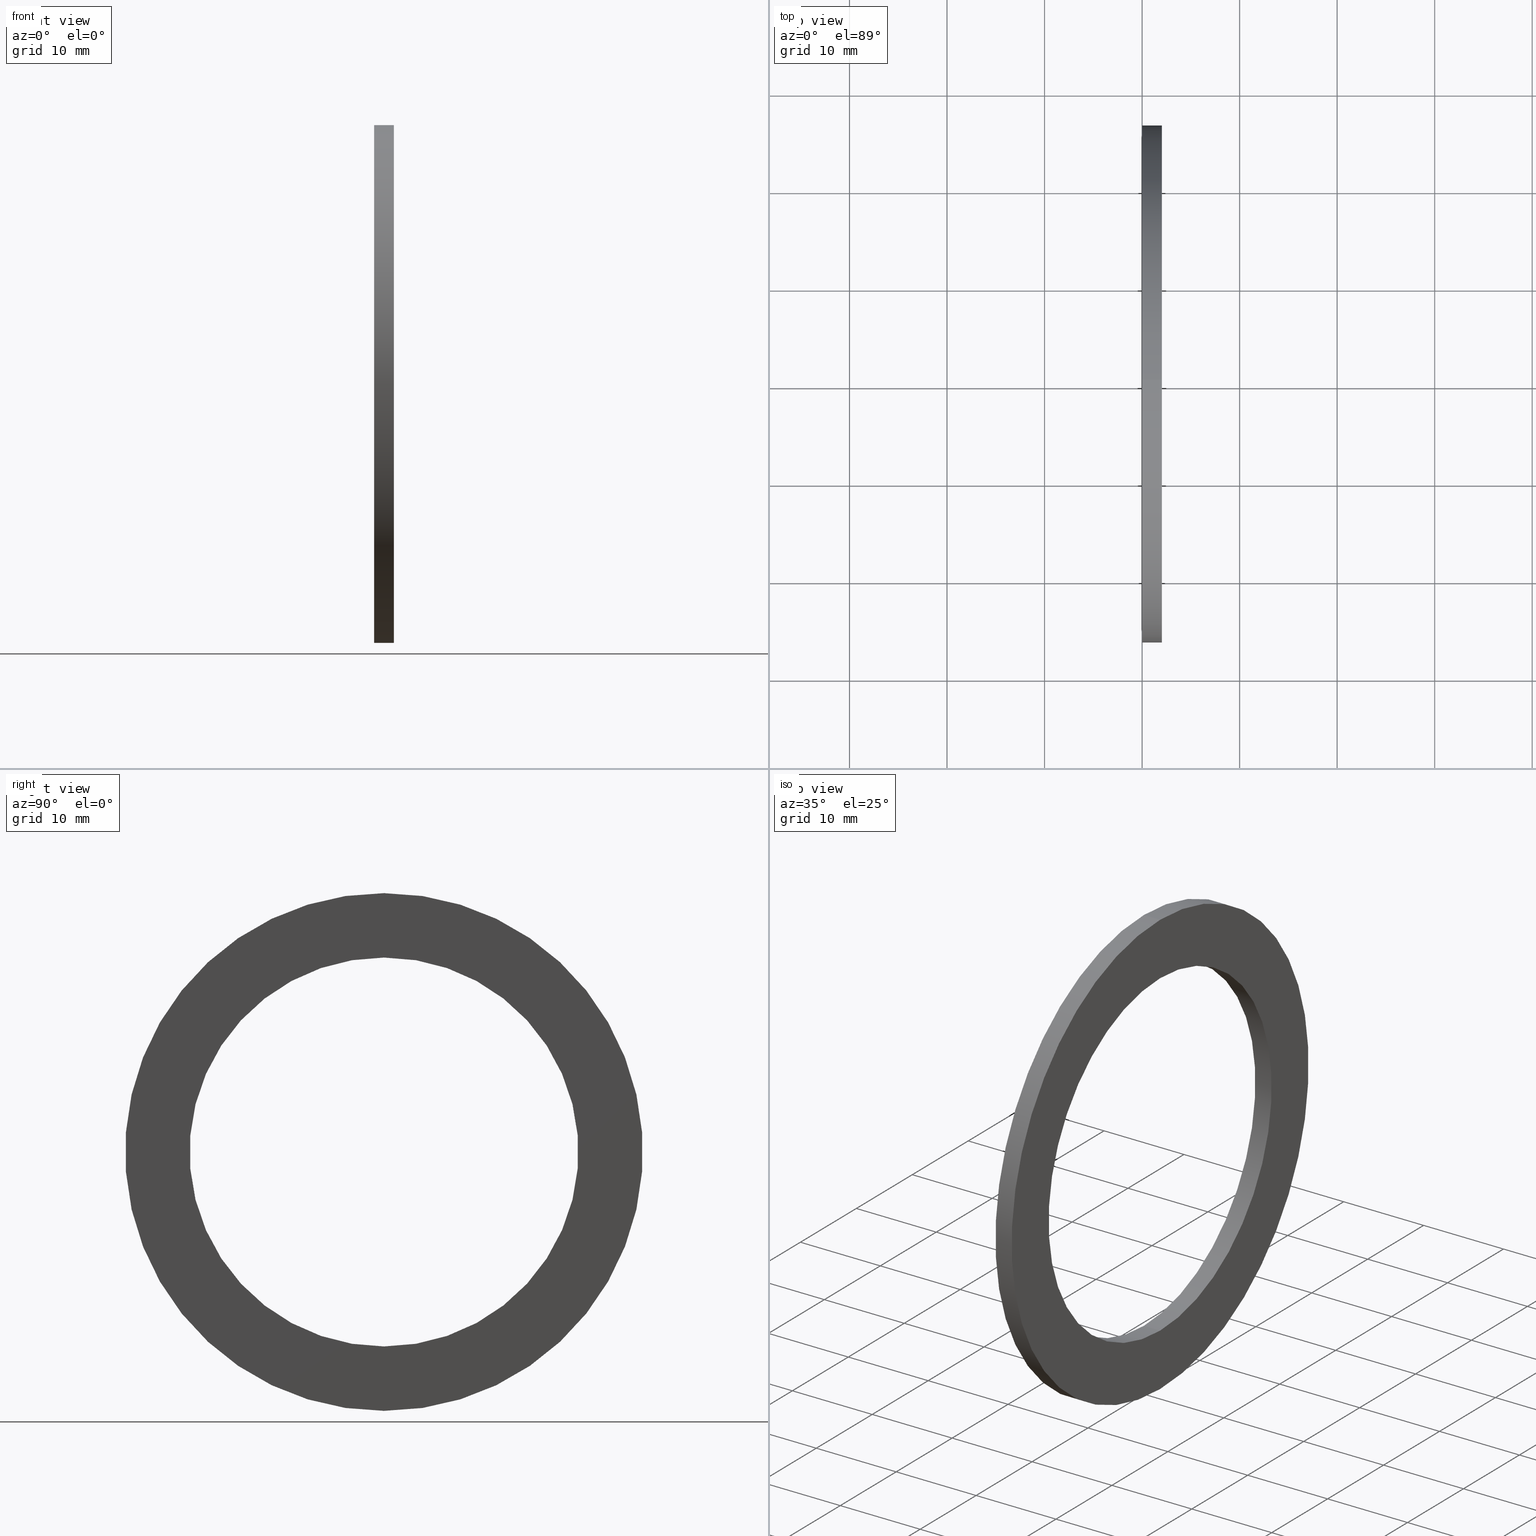
[diagram: canonical four-view strip — front | top / right | iso, engineering-drawing reading convention]
A machine part, canonical four-view strip (front | top / right | iso — engineering-drawing reading convention). The complete STEP part file that produces these views, byte-faithful:
ISO-10303-21;
HEADER;
FILE_DESCRIPTION (( 'STEP AP203' ),
    '1' );
FILE_NAME ('SM-40-VT.STEP',
    '2008-06-25T06:03:53',
    ( 'BSI05' ),
    ( 'BAYSTATE' ),
    'SwSTEP 2.0',
    'SolidWorks 2007',
    '' );
FILE_SCHEMA (( 'CONFIG_CONTROL_DESIGN' ));
ENDSEC;

DATA;
#1 = EDGE_CURVE ( 'NONE', #20, #17, #63, .T. ) ;
#2 = ORIENTED_EDGE ( 'NONE', *, *, #14, .T. ) ;
#3 = EDGE_LOOP ( 'NONE', ( #4, #5 ) ) ;
#4 = ORIENTED_EDGE ( 'NONE', *, *, #25, .F. ) ;
#5 = ORIENTED_EDGE ( 'NONE', *, *, #109, .F. ) ;
#6 = ADVANCED_FACE ( 'NONE', ( #64 ), #56, .F. ) ;
#7 = EDGE_LOOP ( 'NONE', ( #8, #9, #10, #11 ) ) ;
#8 = ORIENTED_EDGE ( 'NONE', *, *, #16, .F. ) ;
#9 = ORIENTED_EDGE ( 'NONE', *, *, #1, .F. ) ;
#10 = ORIENTED_EDGE ( 'NONE', *, *, #22, .T. ) ;
#11 = ORIENTED_EDGE ( 'NONE', *, *, #129, .T. ) ;
#12 = VERTEX_POINT ( 'NONE', #57 ) ;
#13 = ORIENTED_EDGE ( 'NONE', *, *, #14, .F. ) ;
#14 = EDGE_CURVE ( 'NONE', #17, #20, #52, .T. ) ;
#15 = VERTEX_POINT ( 'NONE', #47 ) ;
#16 = EDGE_CURVE ( 'NONE', #17, #30, #46, .T. ) ;
#17 = VERTEX_POINT ( 'NONE', #42 ) ;
#18 = EDGE_LOOP ( 'NONE', ( #13, #31, #19, #21 ) ) ;
#19 = ORIENTED_EDGE ( 'NONE', *, *, #26, .T. ) ;
#20 = VERTEX_POINT ( 'NONE', #41 ) ;
#21 = ORIENTED_EDGE ( 'NONE', *, *, #22, .F. ) ;
#22 = EDGE_CURVE ( 'NONE', #20, #12, #40, .T. ) ;
#23 = ADVANCED_FACE ( 'NONE', ( #36 ), #34, .T. ) ;
#24 = ORIENTED_EDGE ( 'NONE', *, *, #25, .T. ) ;
#25 = EDGE_CURVE ( 'NONE', #27, #15, #77, .T. ) ;
#26 = EDGE_CURVE ( 'NONE', #30, #12, #72, .T. ) ;
#27 = VERTEX_POINT ( 'NONE', #68 ) ;
#28 = MANIFOLD_SOLID_BREP ( 'NONE', #33 ) ;
#29 = EDGE_LOOP ( 'NONE', ( #24, #125, #95, #101 ) ) ;
#30 = VERTEX_POINT ( 'NONE', #67 ) ;
#31 = ORIENTED_EDGE ( 'NONE', *, *, #16, .T. ) ;
#32 = ADVANCED_FACE ( 'NONE', ( #66 ), #65, .F. ) ;
#33 = CLOSED_SHELL ( 'NONE', ( #32, #23, #127, #82, #92, #6 ) ) ;
#34 = CYLINDRICAL_SURFACE ( 'NONE', #35, 1.044999999999999900 ) ;
#35 = AXIS2_PLACEMENT_3D ( 'NONE', #81, #80, #79 ) ;
#36 = FACE_OUTER_BOUND ( 'NONE', #29, .T. ) ;
#37 = DIRECTION ( 'NONE',  ( -1.000000000000000000, 0.0000000000000000000, 0.0000000000000000000 ) ) ;
#38 = VECTOR ( 'NONE', #37, 39.37007874015748100 ) ;
#39 = CARTESIAN_POINT ( 'NONE',  ( -1.721125226614714300, 0.0000000000000000000, 0.7850000000000001400 ) ) ;
#40 = LINE ( 'NONE', #39, #38 ) ;
#41 = CARTESIAN_POINT ( 'NONE',  ( 0.07999999999999996000, 0.0000000000000000000, 0.7850000000000001400 ) ) ;
#42 = CARTESIAN_POINT ( 'NONE',  ( 0.07999999999999996000, 9.613477373306724800E-017, -0.7850000000000001400 ) ) ;
#43 = DIRECTION ( 'NONE',  ( -1.000000000000000000, 0.0000000000000000000, 0.0000000000000000000 ) ) ;
#44 = VECTOR ( 'NONE', #43, 39.37007874015748100 ) ;
#45 = CARTESIAN_POINT ( 'NONE',  ( -1.721125226614714300, 9.613477373306724800E-017, -0.7850000000000001400 ) ) ;
#46 = LINE ( 'NONE', #45, #44 ) ;
#47 = CARTESIAN_POINT ( 'NONE',  ( 0.07999999999999996000, 1.279755905108984100E-016, -1.044999999999999900 ) ) ;
#48 = DIRECTION ( 'NONE',  ( 0.0000000000000000000, 0.0000000000000000000, 1.000000000000000000 ) ) ;
#49 = DIRECTION ( 'NONE',  ( -1.000000000000000000, 0.0000000000000000000, 0.0000000000000000000 ) ) ;
#50 = CARTESIAN_POINT ( 'NONE',  ( 0.07999999999999996000, 0.0000000000000000000, 0.0000000000000000000 ) ) ;
#51 = AXIS2_PLACEMENT_3D ( 'NONE', #50, #49, #48 ) ;
#52 = CIRCLE ( 'NONE', #51, 0.7850000000000001400 ) ;
#53 = DIRECTION ( 'NONE',  ( 0.0000000000000000000, 0.0000000000000000000, 1.000000000000000000 ) ) ;
#54 = DIRECTION ( 'NONE',  ( -1.000000000000000000, 0.0000000000000000000, 0.0000000000000000000 ) ) ;
#55 = AXIS2_PLACEMENT_3D ( 'NONE', #58, #54, #53 ) ;
#56 = CYLINDRICAL_SURFACE ( 'NONE', #55, 0.7850000000000001400 ) ;
#57 = CARTESIAN_POINT ( 'NONE',  ( 0.0000000000000000000, 0.0000000000000000000, 0.7850000000000001400 ) ) ;
#58 = CARTESIAN_POINT ( 'NONE',  ( -1.721125226614714300, 0.0000000000000000000, 0.0000000000000000000 ) ) ;
#59 = DIRECTION ( 'NONE',  ( 0.0000000000000000000, 0.0000000000000000000, 1.000000000000000000 ) ) ;
#60 = DIRECTION ( 'NONE',  ( -1.000000000000000000, 0.0000000000000000000, 0.0000000000000000000 ) ) ;
#61 = CARTESIAN_POINT ( 'NONE',  ( 0.07999999999999996000, 0.0000000000000000000, 0.0000000000000000000 ) ) ;
#62 = AXIS2_PLACEMENT_3D ( 'NONE', #61, #60, #59 ) ;
#63 = CIRCLE ( 'NONE', #62, 0.7850000000000001400 ) ;
#64 = FACE_OUTER_BOUND ( 'NONE', #7, .T. ) ;
#65 = CYLINDRICAL_SURFACE ( 'NONE', #123, 0.7850000000000001400 ) ;
#66 = FACE_OUTER_BOUND ( 'NONE', #18, .T. ) ;
#67 = CARTESIAN_POINT ( 'NONE',  ( 0.0000000000000000000, 9.613477373306724800E-017, -0.7850000000000001400 ) ) ;
#68 = CARTESIAN_POINT ( 'NONE',  ( 0.07999999999999996000, 0.0000000000000000000, 1.044999999999999900 ) ) ;
#69 = DIRECTION ( 'NONE',  ( 0.0000000000000000000, 0.0000000000000000000, 1.000000000000000000 ) ) ;
#70 = DIRECTION ( 'NONE',  ( -1.000000000000000000, 0.0000000000000000000, 0.0000000000000000000 ) ) ;
#71 = AXIS2_PLACEMENT_3D ( 'NONE', #78, #70, #69 ) ;
#72 = CIRCLE ( 'NONE', #71, 0.7850000000000001400 ) ;
#73 = DIRECTION ( 'NONE',  ( 0.0000000000000000000, 0.0000000000000000000, 1.000000000000000000 ) ) ;
#74 = DIRECTION ( 'NONE',  ( -1.000000000000000000, 0.0000000000000000000, 0.0000000000000000000 ) ) ;
#75 = CARTESIAN_POINT ( 'NONE',  ( 0.07999999999999996000, 0.0000000000000000000, 0.0000000000000000000 ) ) ;
#76 = AXIS2_PLACEMENT_3D ( 'NONE', #75, #74, #73 ) ;
#77 = CIRCLE ( 'NONE', #76, 1.044999999999999900 ) ;
#78 = CARTESIAN_POINT ( 'NONE',  ( 0.0000000000000000000, 0.0000000000000000000, 0.0000000000000000000 ) ) ;
#79 = DIRECTION ( 'NONE',  ( 0.0000000000000000000, 0.0000000000000000000, 1.000000000000000000 ) ) ;
#80 = DIRECTION ( 'NONE',  ( -1.000000000000000000, 0.0000000000000000000, 0.0000000000000000000 ) ) ;
#81 = CARTESIAN_POINT ( 'NONE',  ( -1.721125226614714300, 0.0000000000000000000, 0.0000000000000000000 ) ) ;
#82 = ADVANCED_FACE ( 'NONE', ( #124 ), #119, .T. ) ;
#83 = DIRECTION ( 'NONE',  ( -1.000000000000000000, 0.0000000000000000000, 0.0000000000000000000 ) ) ;
#84 = CARTESIAN_POINT ( 'NONE',  ( 0.0000000000000000000, 0.0000000000000000000, 0.0000000000000000000 ) ) ;
#85 = AXIS2_PLACEMENT_3D ( 'NONE', #84, #83, #196 ) ;
#86 = CIRCLE ( 'NONE', #85, 1.044999999999999900 ) ;
#87 = CARTESIAN_POINT ( 'NONE',  ( 0.0000000000000000000, 1.279755905108984100E-016, -1.044999999999999900 ) ) ;
#88 = DIRECTION ( 'NONE',  ( 0.0000000000000000000, 0.0000000000000000000, -1.000000000000000000 ) ) ;
#89 = DIRECTION ( 'NONE',  ( 1.000000000000000000, 0.0000000000000000000, 0.0000000000000000000 ) ) ;
#90 = CARTESIAN_POINT ( 'NONE',  ( 0.08000000000000001600, -0.7850000000000001400, 0.0000000000000000000 ) ) ;
#91 = AXIS2_PLACEMENT_3D ( 'NONE', #90, #89, #88 ) ;
#92 = ADVANCED_FACE ( 'NONE', ( #113, #112 ), #118, .T. ) ;
#93 = EDGE_LOOP ( 'NONE', ( #103, #2 ) ) ;
#94 = VERTEX_POINT ( 'NONE', #87 ) ;
#95 = ORIENTED_EDGE ( 'NONE', *, *, #96, .F. ) ;
#96 = EDGE_CURVE ( 'NONE', #97, #94, #86, .T. ) ;
#97 = VERTEX_POINT ( 'NONE', #200 ) ;
#98 = ORIENTED_EDGE ( 'NONE', *, *, #102, .T. ) ;
#99 = EDGE_LOOP ( 'NONE', ( #100, #104, #98, #107 ) ) ;
#100 = ORIENTED_EDGE ( 'NONE', *, *, #126, .F. ) ;
#101 = ORIENTED_EDGE ( 'NONE', *, *, #102, .F. ) ;
#102 = EDGE_CURVE ( 'NONE', #27, #97, #245, .T. ) ;
#103 = ORIENTED_EDGE ( 'NONE', *, *, #1, .T. ) ;
#104 = ORIENTED_EDGE ( 'NONE', *, *, #109, .T. ) ;
#105 = EDGE_LOOP ( 'NONE', ( #106, #130 ) ) ;
#106 = ORIENTED_EDGE ( 'NONE', *, *, #129, .F. ) ;
#107 = ORIENTED_EDGE ( 'NONE', *, *, #108, .F. ) ;
#108 = EDGE_CURVE ( 'NONE', #94, #97, #241, .T. ) ;
#109 = EDGE_CURVE ( 'NONE', #15, #27, #251, .T. ) ;
#110 = ORIENTED_EDGE ( 'NONE', *, *, #96, .T. ) ;
#111 = ORIENTED_EDGE ( 'NONE', *, *, #108, .T. ) ;
#112 = FACE_OUTER_BOUND ( 'NONE', #3, .T. ) ;
#113 = FACE_BOUND ( 'NONE', #93, .T. ) ;
#114 = DIRECTION ( 'NONE',  ( 0.0000000000000000000, 0.0000000000000000000, 1.000000000000000000 ) ) ;
#115 = DIRECTION ( 'NONE',  ( -1.000000000000000000, 0.0000000000000000000, 0.0000000000000000000 ) ) ;
#116 = CARTESIAN_POINT ( 'NONE',  ( -1.721125226614714300, 0.0000000000000000000, 0.0000000000000000000 ) ) ;
#117 = AXIS2_PLACEMENT_3D ( 'NONE', #116, #115, #114 ) ;
#118 = PLANE ( 'NONE',  #91 ) ;
#119 = CYLINDRICAL_SURFACE ( 'NONE', #117, 1.044999999999999900 ) ;
#120 = DIRECTION ( 'NONE',  ( 0.0000000000000000000, 0.0000000000000000000, 1.000000000000000000 ) ) ;
#121 = DIRECTION ( 'NONE',  ( -1.000000000000000000, 0.0000000000000000000, 0.0000000000000000000 ) ) ;
#122 = CARTESIAN_POINT ( 'NONE',  ( -1.721125226614714300, 0.0000000000000000000, 0.0000000000000000000 ) ) ;
#123 = AXIS2_PLACEMENT_3D ( 'NONE', #122, #121, #120 ) ;
#124 = FACE_OUTER_BOUND ( 'NONE', #99, .T. ) ;
#125 = ORIENTED_EDGE ( 'NONE', *, *, #126, .T. ) ;
#126 = EDGE_CURVE ( 'NONE', #15, #94, #197, .T. ) ;
#127 = ADVANCED_FACE ( 'NONE', ( #236, #235 ), #240, .T. ) ;
#128 = EDGE_LOOP ( 'NONE', ( #110, #111 ) ) ;
#129 = EDGE_CURVE ( 'NONE', #12, #30, #207, .T. ) ;
#130 = ORIENTED_EDGE ( 'NONE', *, *, #26, .F. ) ;
#131 =( NAMED_UNIT ( * ) PLANE_ANGLE_UNIT ( ) SI_UNIT ( $, .RADIAN. ) );
#132 =( CONVERSION_BASED_UNIT ( 'INCH', #133 ) LENGTH_UNIT ( ) NAMED_UNIT ( #134 ) );
#133 = LENGTH_MEASURE_WITH_UNIT ( LENGTH_MEASURE( 0.02539999999999999900 ), #135 );
#134 = DIMENSIONAL_EXPONENTS ( 1.000000000000000000, 0.0000000000000000000, 0.0000000000000000000, 0.0000000000000000000, 0.0000000000000000000, 0.0000000000000000000, 0.0000000000000000000 ) ;
#135 =( LENGTH_UNIT ( ) NAMED_UNIT ( * ) SI_UNIT ( $, .METRE. ) );
#136 = DIRECTION ( 'NONE',  ( 0.0000000000000000000, 0.0000000000000000000, 1.000000000000000000 ) ) ;
#137 = DIRECTION ( 'NONE',  ( 0.0000000000000000000, 0.0000000000000000000, 1.000000000000000000 ) ) ;
#138 = DIRECTION ( 'NONE',  ( -1.000000000000000000, 0.0000000000000000000, 0.0000000000000000000 ) ) ;
#139 = PRODUCT_DEFINITION_SHAPE ( 'NONE', 'NONE',  #218 ) ;
#140 = PRODUCT_RELATED_PRODUCT_CATEGORY ( 'detail', '', ( #227 ) ) ;
#141 = CC_DESIGN_SECURITY_CLASSIFICATION ( #162, ( #181 ) ) ;
#142 = CC_DESIGN_APPROVAL ( #150, ( #162 ) ) ;
#143 = APPROVAL_DATE_TIME ( #144, #150 ) ;
#144 = DATE_AND_TIME ( #145, #146 ) ;
#145 = CALENDAR_DATE ( 2008, 25, 6 ) ;
#146 = LOCAL_TIME ( 11, 33, 53.00000000000000000, #147 ) ;
#147 = COORDINATED_UNIVERSAL_TIME_OFFSET ( 5, 30, .AHEAD. ) ;
#148 = APPROVAL_PERSON_ORGANIZATION ( #152, #150, #149 ) ;
#149 = APPROVAL_ROLE ( '' ) ;
#150 = APPROVAL ( #151, 'UNSPECIFIED' ) ;
#151 = APPROVAL_STATUS ( 'not_yet_approved' ) ;
#152 = PERSON_AND_ORGANIZATION ( #226, #225 ) ;
#153 = CC_DESIGN_DATE_AND_TIME_ASSIGNMENT ( #155, #154, ( #162 ) ) ;
#154 = DATE_TIME_ROLE ( 'classification_date' ) ;
#155 = DATE_AND_TIME ( #156, #157 ) ;
#156 = CALENDAR_DATE ( 2008, 25, 6 ) ;
#157 = LOCAL_TIME ( 11, 33, 53.00000000000000000, #158 ) ;
#158 = COORDINATED_UNIVERSAL_TIME_OFFSET ( 5, 30, .AHEAD. ) ;
#159 = CC_DESIGN_PERSON_AND_ORGANIZATION_ASSIGNMENT ( #161, #160, ( #162 ) ) ;
#160 = PERSON_AND_ORGANIZATION_ROLE ( 'classification_officer' ) ;
#161 = PERSON_AND_ORGANIZATION ( #226, #225 ) ;
#162 = SECURITY_CLASSIFICATION ( '', '', #163 ) ;
#163 = SECURITY_CLASSIFICATION_LEVEL ( 'unclassified' ) ;
#164 = CC_DESIGN_PERSON_AND_ORGANIZATION_ASSIGNMENT ( #166, #165, ( #181 ) ) ;
#165 = PERSON_AND_ORGANIZATION_ROLE ( 'design_supplier' ) ;
#166 = PERSON_AND_ORGANIZATION ( #226, #225 ) ;
#167 = CC_DESIGN_PERSON_AND_ORGANIZATION_ASSIGNMENT ( #169, #168, ( #181 ) ) ;
#168 = PERSON_AND_ORGANIZATION_ROLE ( 'creator' ) ;
#169 = PERSON_AND_ORGANIZATION ( #226, #225 ) ;
#170 = CC_DESIGN_APPROVAL ( #178, ( #181 ) ) ;
#171 = APPROVAL_DATE_TIME ( #172, #178 ) ;
#172 = DATE_AND_TIME ( #173, #174 ) ;
#173 = CALENDAR_DATE ( 2008, 25, 6 ) ;
#174 = LOCAL_TIME ( 11, 33, 53.00000000000000000, #175 ) ;
#175 = COORDINATED_UNIVERSAL_TIME_OFFSET ( 5, 30, .AHEAD. ) ;
#176 = APPROVAL_PERSON_ORGANIZATION ( #180, #178, #177 ) ;
#177 = APPROVAL_ROLE ( '' ) ;
#178 = APPROVAL ( #179, 'UNSPECIFIED' ) ;
#179 = APPROVAL_STATUS ( 'not_yet_approved' ) ;
#180 = PERSON_AND_ORGANIZATION ( #226, #225 ) ;
#181 = PRODUCT_DEFINITION_FORMATION_WITH_SPECIFIED_SOURCE ( 'ANY', '', #227, .NOT_KNOWN. ) ;
#182 = CC_DESIGN_DATE_AND_TIME_ASSIGNMENT ( #184, #183, ( #218 ) ) ;
#183 = DATE_TIME_ROLE ( 'creation_date' ) ;
#184 = DATE_AND_TIME ( #185, #186 ) ;
#185 = CALENDAR_DATE ( 2008, 25, 6 ) ;
#186 = LOCAL_TIME ( 11, 33, 53.00000000000000000, #187 ) ;
#187 = COORDINATED_UNIVERSAL_TIME_OFFSET ( 5, 30, .AHEAD. ) ;
#188 = CC_DESIGN_PERSON_AND_ORGANIZATION_ASSIGNMENT ( #190, #189, ( #218 ) ) ;
#189 = PERSON_AND_ORGANIZATION_ROLE ( 'creator' ) ;
#190 = PERSON_AND_ORGANIZATION ( #226, #225 ) ;
#191 = CC_DESIGN_APPROVAL ( #215, ( #218 ) ) ;
#192 = APPROVAL_DATE_TIME ( #193, #215 ) ;
#193 = DATE_AND_TIME ( #194, #195 ) ;
#194 = CALENDAR_DATE ( 2008, 25, 6 ) ;
#195 = LOCAL_TIME ( 11, 33, 53.00000000000000000, #212 ) ;
#196 = DIRECTION ( 'NONE',  ( 0.0000000000000000000, 0.0000000000000000000, 1.000000000000000000 ) ) ;
#197 = LINE ( 'NONE', #239, #238 ) ;
#198 = DIRECTION ( 'NONE',  ( 0.0000000000000000000, 0.0000000000000000000, 1.000000000000000000 ) ) ;
#199 = DIRECTION ( 'NONE',  ( -1.000000000000000000, 0.0000000000000000000, 0.0000000000000000000 ) ) ;
#200 = CARTESIAN_POINT ( 'NONE',  ( 0.0000000000000000000, 0.0000000000000000000, 1.044999999999999900 ) ) ;
#201 = ADVANCED_BREP_SHAPE_REPRESENTATION ( 'SM-40-VT', ( #28, #249 ), #202 ) ;
#202 =( GEOMETRIC_REPRESENTATION_CONTEXT ( 3 ) GLOBAL_UNCERTAINTY_ASSIGNED_CONTEXT ( ( #203 ) ) GLOBAL_UNIT_ASSIGNED_CONTEXT ( ( #132, #131, #204 ) ) REPRESENTATION_CONTEXT ( 'NONE', 'WORKASPACE' ) );
#203 = UNCERTAINTY_MEASURE_WITH_UNIT (LENGTH_MEASURE( 1.000000000000000100E-005 ), #132, 'distance_accuracy_value', 'NONE');
#204 =( NAMED_UNIT ( * ) SI_UNIT ( $, .STERADIAN. ) SOLID_ANGLE_UNIT ( ) );
#205 = CARTESIAN_POINT ( 'NONE',  ( 0.0000000000000000000, 0.0000000000000000000, 0.0000000000000000000 ) ) ;
#206 = AXIS2_PLACEMENT_3D ( 'NONE', #205, #138, #137 ) ;
#207 = CIRCLE ( 'NONE', #206, 0.7850000000000001400 ) ;
#208 = DIRECTION ( 'NONE',  ( 0.0000000000000000000, 0.0000000000000000000, 1.000000000000000000 ) ) ;
#209 = DIRECTION ( 'NONE',  ( -1.000000000000000000, 0.0000000000000000000, 0.0000000000000000000 ) ) ;
#210 = CARTESIAN_POINT ( 'NONE',  ( 2.265521754571398000E-017, -0.7850000000000001400, 0.0000000000000000000 ) ) ;
#211 = AXIS2_PLACEMENT_3D ( 'NONE', #210, #209, #208 ) ;
#212 = COORDINATED_UNIVERSAL_TIME_OFFSET ( 5, 30, .AHEAD. ) ;
#213 = APPROVAL_PERSON_ORGANIZATION ( #217, #215, #214 ) ;
#214 = APPROVAL_ROLE ( '' ) ;
#215 = APPROVAL ( #216, 'UNSPECIFIED' ) ;
#216 = APPROVAL_STATUS ( 'not_yet_approved' ) ;
#217 = PERSON_AND_ORGANIZATION ( #226, #225 ) ;
#218 = PRODUCT_DEFINITION ( 'UNKNOWN', '', #181, #219 ) ;
#219 = DESIGN_CONTEXT ( 'detailed design', #221, 'design' ) ;
#220 = APPLICATION_PROTOCOL_DEFINITION ( 'international standard', 'config_control_design', 1994, #221 ) ;
#221 = APPLICATION_CONTEXT ( 'configuration controlled 3d designs of mechanical parts and assemblies' ) ;
#222 = CC_DESIGN_PERSON_AND_ORGANIZATION_ASSIGNMENT ( #224, #223, ( #227 ) ) ;
#223 = PERSON_AND_ORGANIZATION_ROLE ( 'design_owner' ) ;
#224 = PERSON_AND_ORGANIZATION ( #226, #225 ) ;
#225 = ORGANIZATION ( 'UNSPECIFIED', 'UNSPECIFIED', '' ) ;
#226 = PERSON ( 'UNSPECIFIED', 'UNSPECIFIED', 'UNSPECIFIED', ('UNSPECIFIED'), ('UNSPECIFIED'), ('UNSPECIFIED') ) ;
#227 = PRODUCT ( 'SM-40-VT', 'SM-40-VT', '', ( #228 ) ) ;
#228 = MECHANICAL_CONTEXT ( 'NONE', #234, 'mechanical' ) ;
#229 = APPLICATION_PROTOCOL_DEFINITION ( 'international standard', 'config_control_design', 1994, #234 ) ;
#230 = DIRECTION ( 'NONE',  ( -1.000000000000000000, 0.0000000000000000000, 0.0000000000000000000 ) ) ;
#231 = CARTESIAN_POINT ( 'NONE',  ( 0.0000000000000000000, 0.0000000000000000000, 0.0000000000000000000 ) ) ;
#232 = AXIS2_PLACEMENT_3D ( 'NONE', #231, #230, #252 ) ;
#233 = CARTESIAN_POINT ( 'NONE',  ( 0.07999999999999996000, 0.0000000000000000000, 0.0000000000000000000 ) ) ;
#234 = APPLICATION_CONTEXT ( 'configuration controlled 3d designs of mechanical parts and assemblies' ) ;
#235 = FACE_BOUND ( 'NONE', #105, .T. ) ;
#236 = FACE_OUTER_BOUND ( 'NONE', #128, .T. ) ;
#237 = DIRECTION ( 'NONE',  ( -1.000000000000000000, 0.0000000000000000000, 0.0000000000000000000 ) ) ;
#238 = VECTOR ( 'NONE', #237, 39.37007874015748100 ) ;
#239 = CARTESIAN_POINT ( 'NONE',  ( -1.721125226614714300, 1.279755905108984100E-016, -1.044999999999999900 ) ) ;
#240 = PLANE ( 'NONE',  #211 ) ;
#241 = CIRCLE ( 'NONE', #232, 1.044999999999999900 ) ;
#242 = DIRECTION ( 'NONE',  ( -1.000000000000000000, 0.0000000000000000000, 0.0000000000000000000 ) ) ;
#243 = VECTOR ( 'NONE', #242, 39.37007874015748100 ) ;
#244 = CARTESIAN_POINT ( 'NONE',  ( -1.721125226614714300, 0.0000000000000000000, 1.044999999999999900 ) ) ;
#245 = LINE ( 'NONE', #244, #243 ) ;
#246 = SHAPE_DEFINITION_REPRESENTATION ( #139, #201 ) ;
#247 = DIRECTION ( 'NONE',  ( 1.000000000000000000, 0.0000000000000000000, 0.0000000000000000000 ) ) ;
#248 = CARTESIAN_POINT ( 'NONE',  ( 0.0000000000000000000, 0.0000000000000000000, 0.0000000000000000000 ) ) ;
#249 = AXIS2_PLACEMENT_3D ( 'NONE', #248, #136, #247 ) ;
#250 = AXIS2_PLACEMENT_3D ( 'NONE', #233, #199, #198 ) ;
#251 = CIRCLE ( 'NONE', #250, 1.044999999999999900 ) ;
#252 = DIRECTION ( 'NONE',  ( 0.0000000000000000000, 0.0000000000000000000, 1.000000000000000000 ) ) ;
ENDSEC;
END-ISO-10303-21;
